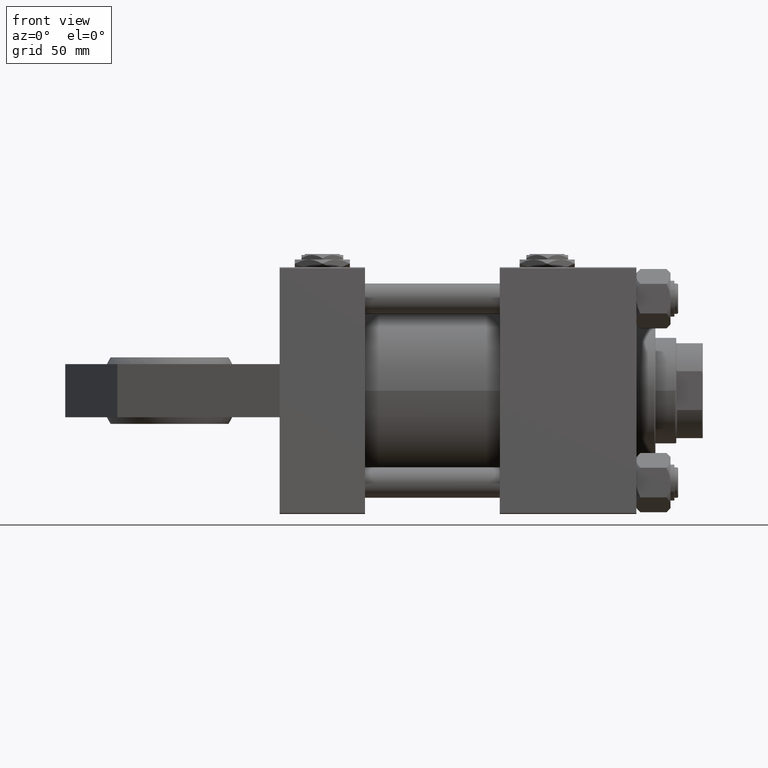
[diagram: clean part render]
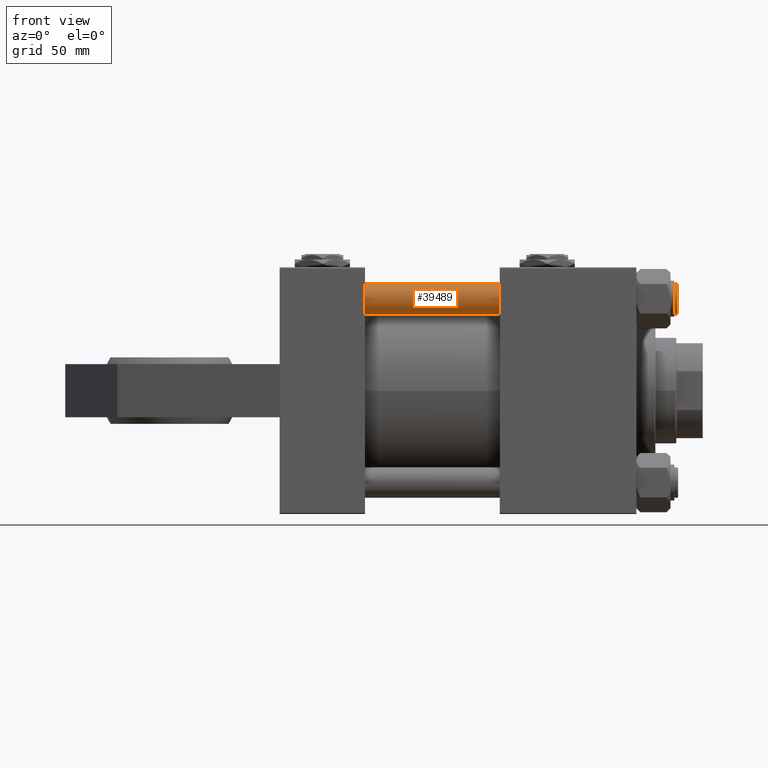
[diagram: same view with one face highlighted and labeled with its STEP entity id]
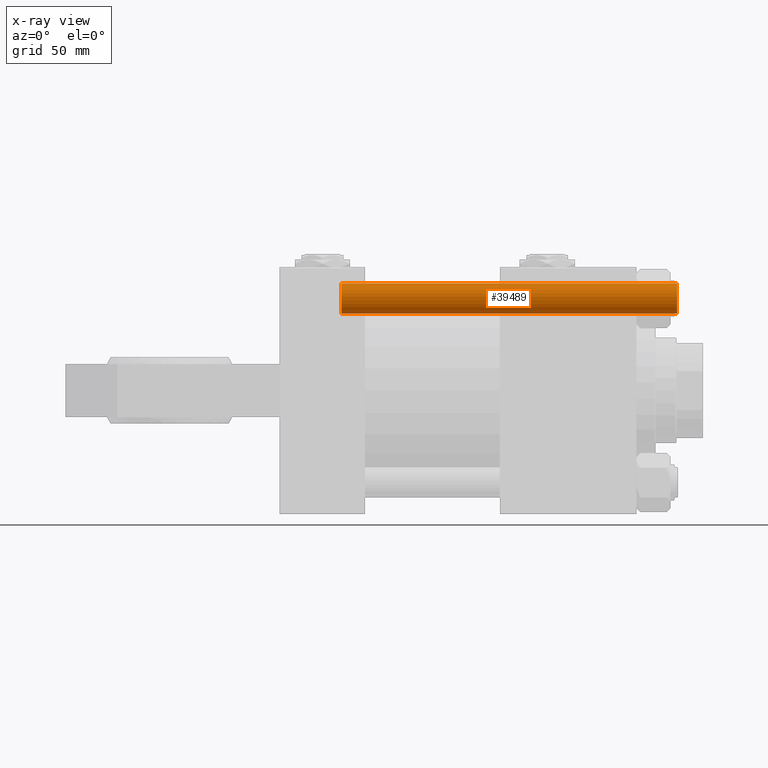
[diagram: x-ray of the same camera — body ghosted, the highlighted face saturated]
A machine part, front view. The second image highlights one B-rep face of the part: STEP entity #39489.
The next image is the same camera in x-ray: the body ghosted, the highlighted face saturated — about 0% of this face is hidden behind the body in this view.
In plain terms, the highlighted cylindrical surface (edge-blend (fillet) strip) has radius 8 mm, axis along (-1, 0, -0).
Its self-contained STEP definition (entity closure, byte-faithful):
#1408 = DIRECTION ( 'NONE',  ( 1.000000000000000000, 0.000000000000000000, 0.000000000000000000 ) ) ;
#2091 = DIRECTION ( 'NONE',  ( -1.000000000000000000, 0.000000000000000000, 0.000000000000000000 ) ) ;
#4659 = CARTESIAN_POINT ( 'NONE',  ( 0.000000000000000000, 0.000000000000000000, 0.4999999999999449329 ) ) ;
#5155 = CARTESIAN_POINT ( 'NONE',  ( 0.000000000000000000, 0.000000000000000000, 177.5000000000000284 ) ) ;
#5282 = VECTOR ( 'NONE', #6714, 1000.000000000000000 ) ;
#6096 = CYLINDRICAL_SURFACE ( 'NONE', #14163, 8.000000000000000000 ) ;
#6714 = DIRECTION ( 'NONE',  ( -0.000000000000000000, -0.000000000000000000, -1.000000000000000000 ) ) ;
#8430 = VECTOR ( 'NONE', #45930, 1000.000000000000000 ) ;
#9768 = AXIS2_PLACEMENT_3D ( 'NONE', #4659, #21968, #37440 ) ;
#12222 = AXIS2_PLACEMENT_3D ( 'NONE', #5155, #21432, #1408 ) ;
#14163 = AXIS2_PLACEMENT_3D ( 'NONE', #43132, #42355, #2091 ) ;
#14849 = CIRCLE ( 'NONE', #9768, 8.000000000000000000 ) ;
#15957 = ORIENTED_EDGE ( 'NONE', *, *, #36100, .F. ) ;
#16174 = ORIENTED_EDGE ( 'NONE', *, *, #45813, .T. ) ;
#17524 = EDGE_CURVE ( 'NONE', #44644, #43878, #31814, .T. ) ;
#21375 = CARTESIAN_POINT ( 'NONE',  ( 8.000000000000000000, 9.797174393178825657E-16, 0.4999999999999449329 ) ) ;
#21432 = DIRECTION ( 'NONE',  ( 0.000000000000000000, 0.000000000000000000, -1.000000000000000000 ) ) ;
#21939 = CARTESIAN_POINT ( 'NONE',  ( 8.000000000000000000, 9.797174393178825657E-16, 178.0000000000000000 ) ) ;
#21968 = DIRECTION ( 'NONE',  ( -0.000000000000000000, -0.000000000000000000, 1.000000000000000000 ) ) ;
#23418 = EDGE_CURVE ( 'NONE', #33067, #32324, #14849, .T. ) ;
#31807 = ORIENTED_EDGE ( 'NONE', *, *, #23418, .T. ) ;
#31814 = CIRCLE ( 'NONE', #12222, 8.000000000000000000 ) ;
#32324 = VERTEX_POINT ( 'NONE', #46626 ) ;
#33067 = VERTEX_POINT ( 'NONE', #21375 ) ;
#35280 = CARTESIAN_POINT ( 'NONE',  ( 8.000000000000000000, 9.797174393178825657E-16, 177.5000000000000284 ) ) ;
#35404 = FACE_OUTER_BOUND ( 'NONE', #47669, .T. ) ;
#36059 = ORIENTED_EDGE ( 'NONE', *, *, #17524, .T. ) ;
#36100 = EDGE_CURVE ( 'NONE', #44644, #32324, #43230, .T. ) ;
#37440 = DIRECTION ( 'NONE',  ( 1.000000000000000000, 0.000000000000000000, 0.000000000000000000 ) ) ;
#39489 = ADVANCED_FACE ( 'NONE', ( #35404 ), #6096, .T. ) ;
#42355 = DIRECTION ( 'NONE',  ( -0.000000000000000000, -0.000000000000000000, -1.000000000000000000 ) ) ;
#43132 = CARTESIAN_POINT ( 'NONE',  ( 0.000000000000000000, 0.000000000000000000, 178.0000000000000000 ) ) ;
#43230 = LINE ( 'NONE', #47223, #5282 ) ;
#43878 = VERTEX_POINT ( 'NONE', #35280 ) ;
#44644 = VERTEX_POINT ( 'NONE', #47070 ) ;
#45413 = LINE ( 'NONE', #21939, #8430 ) ;
#45813 = EDGE_CURVE ( 'NONE', #43878, #33067, #45413, .T. ) ;
#45930 = DIRECTION ( 'NONE',  ( -0.000000000000000000, -0.000000000000000000, -1.000000000000000000 ) ) ;
#46626 = CARTESIAN_POINT ( 'NONE',  ( -8.000000000000000000, 0.000000000000000000, 0.4999999999999449329 ) ) ;
#47070 = CARTESIAN_POINT ( 'NONE',  ( -8.000000000000000000, 0.000000000000000000, 177.5000000000000284 ) ) ;
#47223 = CARTESIAN_POINT ( 'NONE',  ( -8.000000000000000000, 0.000000000000000000, 178.0000000000000000 ) ) ;
#47669 = EDGE_LOOP ( 'NONE', ( #36059, #16174, #31807, #15957 ) ) ;